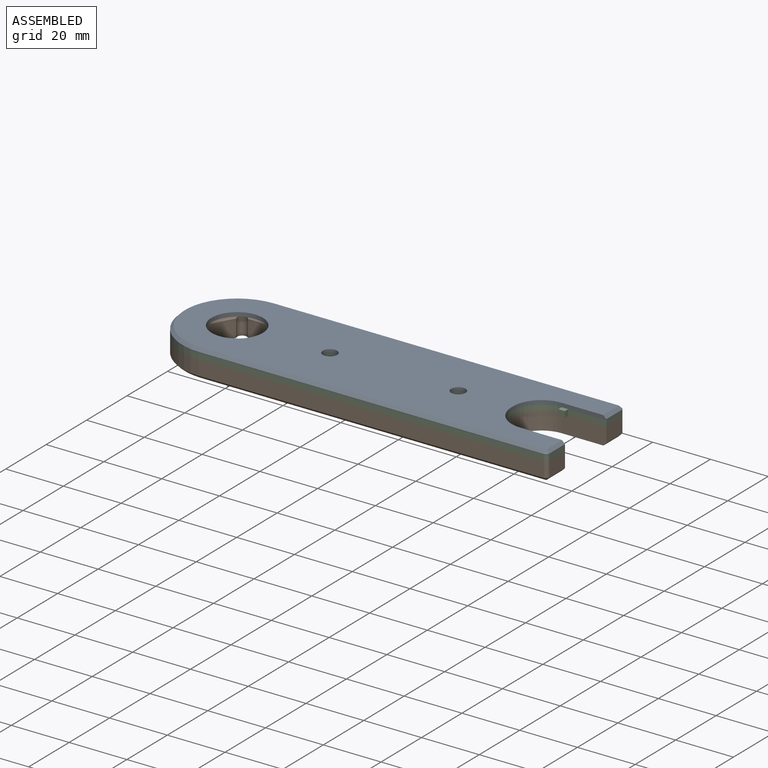
[diagram: assembled view]
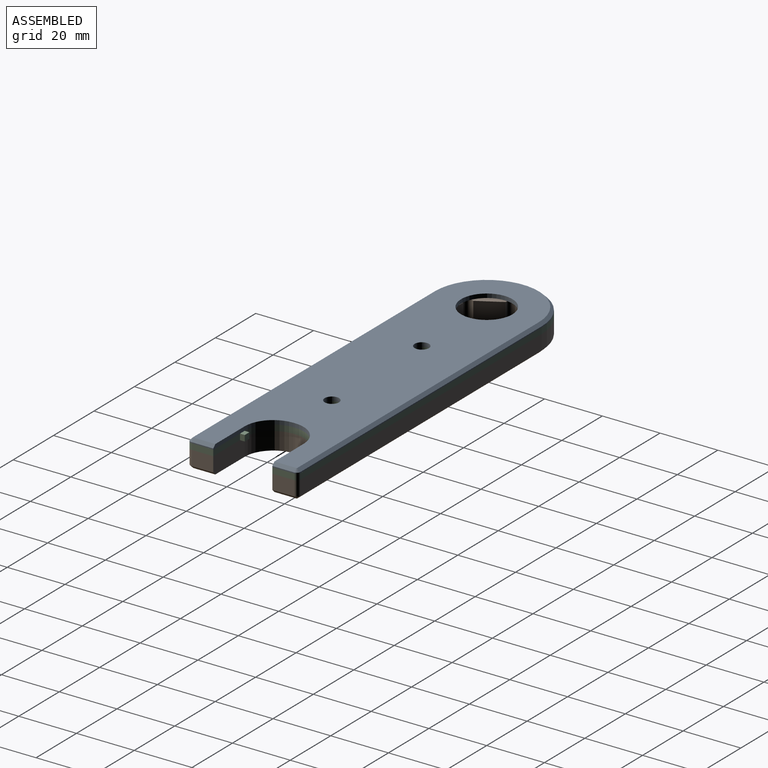
[diagram: assembled view, second angle]
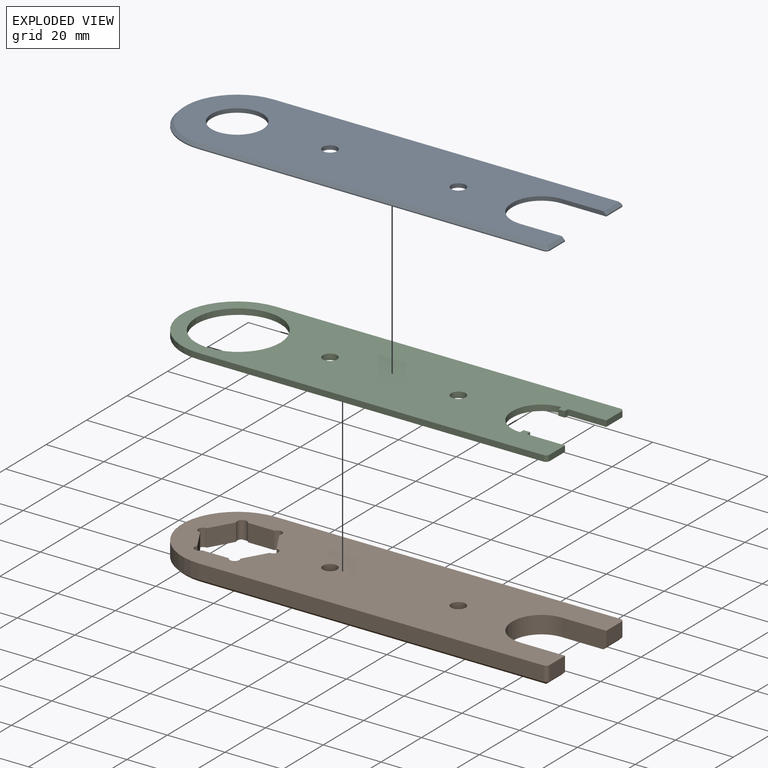
[diagram: exploded view]
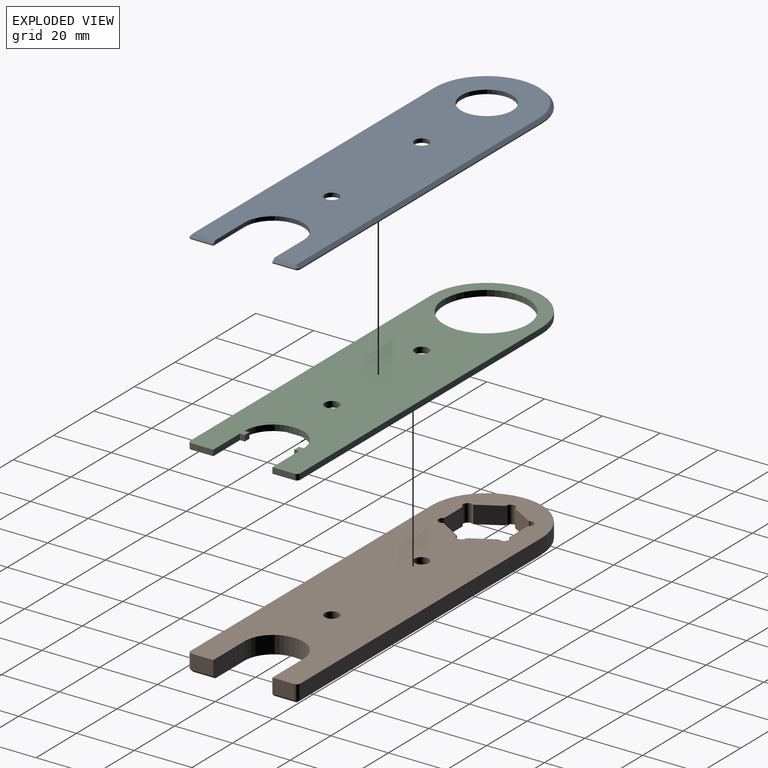
[diagram: exploded view, second angle]
ASSEMBLY  parts=3 mates=6
PART A: 24 faces, bbox 139.7x38.1x1.4 mm
  f0: plane 137.67x36.07mm, normal (0,0,1), area 4082.1mm2, adj f7,f8,f9,f10,f11,f14,f15,f16
  f1: plane 139.7x38.1mm, normal (0,0,-1), area 4401.7mm2, adj f2,f3,f4,f5,f6,f7,f8,f9
  f2: plane 7.56x0.38mm, normal (1,0,0), area 2.9mm2, adj f1,f9,f12,f17
  f3: plane 119.38x0.38mm, normal (0,1,0), area 45.5mm2, adj f1,f6,f13,f21
  f4: plane 119.38x0.38mm, normal (0,-1,0), area 45.5mm2, adj f1,f6,f12,f19
  f5: plane 7.56x0.38mm, normal (1,0,0), area 2.9mm2, adj f1,f7,f13,f23
  f6: cylinder r=19.05mm len=38.1mm, axis (0,0,-1), area 22.8mm2, adj f1,f3,f4,f20
  f7: plane 15.49x1.4mm, normal (0,-1,0), area 21.1mm2, adj f0,f1,f5,f10,f23
  f8: plane 1.4x0.64mm, normal (1,0,0), area 0.9mm2, adj f0,f1,f10,f11
  f9: plane 15.49x1.4mm, normal (0,1,0), area 21.1mm2, adj f0,f1,f2,f11,f17
  f10: cylinder r=9.91mm len=9.91mm, axis (0,0,-1), area 21.7mm2, adj f0,f1,f7,f8
  f11: cylinder r=9.91mm len=9.91mm, axis (0,0,1), area 21.7mm2, adj f0,f1,f8,f9
  f12: cylinder r=1.27mm len=1.27mm, axis (0,0,1), area 0.8mm2, adj f1,f2,f4,f18
  f13: cylinder r=1.27mm len=1.27mm, axis (0,0,-1), area 0.8mm2, adj f1,f3,f5,f22
  f14: cylinder r=8.89mm len=17.78mm, axis (0,0,1), area 78mm2, adj f0,f1
  f15: cylinder r=2.49mm len=4.98mm, axis (0,0,1), area 21.8mm2, adj f0,f1
  f16: cylinder r=2.49mm len=4.98mm, axis (0,0,1), area 21.8mm2, adj f0,f1
  f17: plane 7.56x1.02mm, normal (0.71,0,0.71), area 10.9mm2, adj f0,f2,f9,f18
  f18: cone r=0.25mm half-angle=45deg, axis (0,0,-1), area 1.7mm2, adj f0,f12,f17,f19
  f19: plane 119.38x1.02mm, normal (0,-0.71,0.71), area 171.5mm2, adj f0,f4,f18,f20
  f20: cone r=18.03mm half-angle=45deg, axis (0,0,-1), area 83.7mm2, adj f0,f6,f19,f21
  f21: plane 119.38x1.02mm, normal (0,0.71,0.71), area 171.5mm2, adj f0,f3,f20,f22
  f22: cone r=0.25mm half-angle=45deg, axis (0,0,-1), area 1.7mm2, adj f0,f13,f21,f23
  f23: plane 7.56x1.02mm, normal (0.71,0,0.71), area 10.9mm2, adj f0,f5,f7,f22
PART B: 47 faces, bbox 139.7x38.1x6.1 mm
  f0: plane 137.67x36.07mm, normal (0,0,1), area 3871.1mm2, adj f2,f3,f4,f5,f6,f7,f13,f14
  f1: plane 139.7x38.1mm, normal (0,0,-1), area 4190.7mm2, adj f2,f3,f4,f5,f6,f7,f8,f9
  f2: plane 7.98x6.1mm, normal (-0.87,0.5,0), area 56.1mm2, adj f0,f1,f21,f36
  f3: plane 7.98x6.1mm, normal (-0.87,-0.5,0), area 56.1mm2, adj f0,f1,f33,f37
  f4: plane 9.21x6.1mm, normal (0,-1,0), area 56.1mm2, adj f0,f1,f30,f34
  f5: plane 7.98x6.1mm, normal (0.87,-0.5,0), area 56.1mm2, adj f0,f1,f27,f31
  f6: plane 7.98x6.1mm, normal (0.87,0.5,0), area 56.1mm2, adj f0,f1,f24,f28
  f7: plane 9.21x6.1mm, normal (0,1,0), area 56.1mm2, adj f0,f1,f22,f25
  f8: plane 7.56x5.08mm, normal (1,0,0), area 38.4mm2, adj f1,f15,f18,f40
  f9: plane 119.38x5.08mm, normal (0,1,0), area 606.5mm2, adj f1,f12,f19,f44
  f10: plane 119.38x5.08mm, normal (0,-1,0), area 606.5mm2, adj f1,f12,f18,f42
  f11: plane 7.56x5.08mm, normal (1,0,0), area 38.4mm2, adj f1,f13,f19,f46
  f12: cylinder r=19.05mm len=38.1mm, axis (0,0,-1), area 304mm2, adj f1,f9,f10,f43
  f13: plane 15.49x6.1mm, normal (0,-1,0), area 93.9mm2, adj f0,f1,f11,f16,f46
  f14: plane 6.1x0.64mm, normal (1,0,0), area 3.9mm2, adj f0,f1,f16,f17
  f15: plane 15.49x6.1mm, normal (0,1,0), area 93.9mm2, adj f0,f1,f8,f17,f40
  f16: cylinder r=9.91mm len=9.91mm, axis (0,0,-1), area 94.9mm2, adj f0,f1,f13,f14
  f17: cylinder r=9.91mm len=9.91mm, axis (0,0,1), area 94.9mm2, adj f0,f1,f14,f15
  f18: cylinder r=1.27mm len=5.08mm, axis (0,0,1), area 10.1mm2, adj f1,f8,f10,f41
  f19: cylinder r=1.27mm len=5.08mm, axis (0,0,-1), area 10.1mm2, adj f1,f9,f11,f45
  f20: cylinder r=1.65mm len=6.1mm, axis (0,0,1), area 31.6mm2, adj f0,f1,f21,f22
  f21: plane 6.1x0.11mm, normal (-0.87,-0.5,0), area 0.7mm2, adj f0,f1,f2,f20
  f22: plane 6.1x0.11mm, normal (0.87,0.5,0), area 0.7mm2, adj f0,f1,f7,f20
  f23: cylinder r=1.65mm len=6.1mm, axis (0,0,1), area 31.6mm2, adj f0,f1,f24,f25
  f24: plane 6.1x0.11mm, normal (0.87,-0.5,0), area 0.7mm2, adj f0,f1,f6,f23
  f25: plane 6.1x0.11mm, normal (-0.87,0.5,0), area 0.7mm2, adj f0,f1,f7,f23
  f26: cylinder r=1.65mm len=6.1mm, axis (0,0,1), area 31.6mm2, adj f0,f1,f27,f28
  f27: plane 6.1x0.12mm, normal (0,-1,0), area 0.7mm2, adj f0,f1,f5,f26
  f28: plane 6.1x0.12mm, normal (0,1,0), area 0.7mm2, adj f0,f1,f6,f26
  f29: cylinder r=1.65mm len=6.1mm, axis (0,0,1), area 31.6mm2, adj f0,f1,f30,f31
  f30: plane 6.1x0.11mm, normal (-0.87,-0.5,0), area 0.7mm2, adj f0,f1,f4,f29
  f31: plane 6.1x0.11mm, normal (0.87,0.5,0), area 0.7mm2, adj f0,f1,f5,f29
  f32: cylinder r=1.65mm len=6.1mm, axis (0,0,1), area 31.6mm2, adj f0,f1,f33,f34
  f33: plane 6.1x0.11mm, normal (-0.87,0.5,0), area 0.7mm2, adj f0,f1,f3,f32
  f34: plane 6.1x0.11mm, normal (0.87,-0.5,0), area 0.7mm2, adj f0,f1,f4,f32
  f35: cylinder r=1.65mm len=6.1mm, axis (0,0,1), area 31.6mm2, adj f0,f1,f36,f37
  f36: plane 6.1x0.12mm, normal (0,1,0), area 0.7mm2, adj f0,f1,f2,f35
  f37: plane 6.1x0.12mm, normal (0,-1,0), area 0.7mm2, adj f0,f1,f3,f35
  f38: cylinder r=2.49mm len=6.1mm, axis (0,0,1), area 95.3mm2, adj f0,f1
  f39: cylinder r=2.49mm len=6.1mm, axis (0,0,1), area 95.3mm2, adj f0,f1
  f40: plane 7.56x1.02mm, normal (0.71,0,0.71), area 10.9mm2, adj f0,f8,f15,f41
  f41: cone r=0.25mm half-angle=45deg, axis (0,0,-1), area 1.7mm2, adj f0,f18,f40,f42
  f42: plane 119.38x1.02mm, normal (0,-0.71,0.71), area 171.5mm2, adj f0,f10,f41,f43
  f43: cone r=18.03mm half-angle=45deg, axis (0,0,-1), area 83.7mm2, adj f0,f12,f42,f44
  f44: plane 119.38x1.02mm, normal (0,0.71,0.71), area 171.5mm2, adj f0,f9,f43,f45
  f45: cone r=0.25mm half-angle=45deg, axis (0,0,-1), area 1.7mm2, adj f0,f19,f44,f46
  f46: plane 7.56x1.02mm, normal (0.71,0,0.71), area 10.9mm2, adj f0,f11,f13,f45
PART C: 34 faces, bbox 139.7x38.1x2 mm
  f0: plane 139.7x38.1mm, normal (0,0,-1), area 3987.1mm2, adj f1,f2,f4,f5,f6,f7,f8,f9
  f1: plane 13.21x2.03mm, normal (0,1,0), area 26.8mm2, adj f0,f3,f4,f25
  f2: plane 13.21x2.03mm, normal (0,-1,0), area 26.8mm2, adj f0,f3,f7,f22
  f3: plane 139.7x38.1mm, normal (0,0,1), area 3987.1mm2, adj f1,f2,f4,f5,f6,f7,f8,f9
  f4: plane 7.56x2.03mm, normal (1,0,0), area 15.4mm2, adj f0,f1,f3,f12
  f5: plane 119.38x2.03mm, normal (0,1,0), area 242.6mm2, adj f0,f3,f8,f13
  f6: plane 119.38x2.03mm, normal (0,-1,0), area 242.6mm2, adj f0,f3,f8,f12
  f7: plane 7.56x2.03mm, normal (1,0,0), area 15.4mm2, adj f0,f2,f3,f13
  f8: cylinder r=19.05mm len=38.1mm, axis (0,0,-1), area 121.6mm2, adj f0,f3,f5,f6
  f9: plane 2.03x0.64mm, normal (1,0,0), area 1.3mm2, adj f0,f3,f10,f11
  f10: cylinder r=9.91mm len=9.91mm, axis (0,0,-1), area 31.6mm2, adj f0,f3,f9,f20
  f11: cylinder r=9.91mm len=9.91mm, axis (0,0,1), area 31.6mm2, adj f0,f3,f9,f23
  f12: cylinder r=1.27mm len=2.03mm, axis (0,0,1), area 4.1mm2, adj f0,f3,f4,f6
  f13: cylinder r=1.27mm len=2.03mm, axis (0,0,-1), area 4.1mm2, adj f0,f3,f5,f7
  f14: cylinder r=1.65mm len=2.03mm, axis (0,0,1), area 2.1mm2, adj f0,f3,f27,f31
  f15: cylinder r=1.65mm len=2.03mm, axis (0,0,1), area 2.1mm2, adj f0,f3,f30,f31
  f16: cylinder r=1.65mm len=2.03mm, axis (0,0,1), area 2.1mm2, adj f0,f3,f29,f30
  f17: cylinder r=1.65mm len=2.03mm, axis (0,0,1), area 2.1mm2, adj f0,f3,f28,f29
  f18: cylinder r=1.65mm len=2.03mm, axis (0,0,1), area 2.1mm2, adj f0,f3,f26,f28
  f19: cylinder r=1.65mm len=2.03mm, axis (0,0,1), area 2.1mm2, adj f0,f3,f26,f27
  f20: plane 2.03x1.65mm, normal (-1,0,0), area 3.4mm2, adj f0,f3,f10,f21
  f21: plane 2.29x2.03mm, normal (0,-1,0), area 4.6mm2, adj f0,f3,f20,f22
  f22: plane 2.03x1.65mm, normal (1,0,0), area 3.4mm2, adj f0,f2,f3,f21
  f23: plane 2.03x1.65mm, normal (-1,0,0), area 3.4mm2, adj f0,f3,f11,f24
  f24: plane 2.29x2.03mm, normal (0,1,0), area 4.6mm2, adj f0,f3,f23,f25
  f25: plane 2.03x1.65mm, normal (1,0,0), area 3.4mm2, adj f0,f1,f3,f24
  f26: cylinder r=14.61mm len=11.89mm, axis (0,0,1), area 29.1mm2, adj f0,f3,f18,f19
  f27: cylinder r=14.61mm len=11.89mm, axis (0,0,1), area 29.1mm2, adj f0,f3,f14,f19
  f28: cylinder r=14.61mm len=13.74mm, axis (0,0,1), area 29.1mm2, adj f0,f3,f17,f18
  f29: cylinder r=14.61mm len=11.89mm, axis (0,0,1), area 29.1mm2, adj f0,f3,f16,f17
  f30: cylinder r=14.61mm len=11.89mm, axis (0,0,1), area 29.1mm2, adj f0,f3,f15,f16
  f31: cylinder r=14.61mm len=13.74mm, axis (0,0,1), area 29.1mm2, adj f0,f3,f14,f15
  f32: cylinder r=2.49mm len=4.98mm, axis (0,0,1), area 31.8mm2, adj f0,f3
  f33: cylinder r=2.49mm len=4.98mm, axis (0,0,1), area 31.8mm2, adj f0,f3
PLACE A t=(-68.62,4.01,-4.11)mm
PLACE B rot(axis=(1,0,0),180deg) t=(-68.24,4.01,-6.14)mm
PLACE C t=(-68.24,4.01,-6.14)mm
MATE planar B.f1 <-> C.f0  axis (0,0,1) through (-16.51,4.01,-6.14)mm
MATE planar B.f9 <-> C.f6  axis (0,-1,0) through (-8.93,-15.04,-8.68)mm
MATE planar A.f1 <-> C.f3  axis (0,0,-1) through (-18.97,4.01,-4.11)mm
MATE planar C.f4 <-> B.f11  axis (1,0,0) through (52.03,-13.77,-5.12)mm
MATE planar A.f2 <-> C.f4  axis (1,0,0) through (52.03,-10,-3.92)mm
MATE planar C.f5 <-> A.f3  axis (0,1,0) through (-8.93,23.06,-5.12)mm
